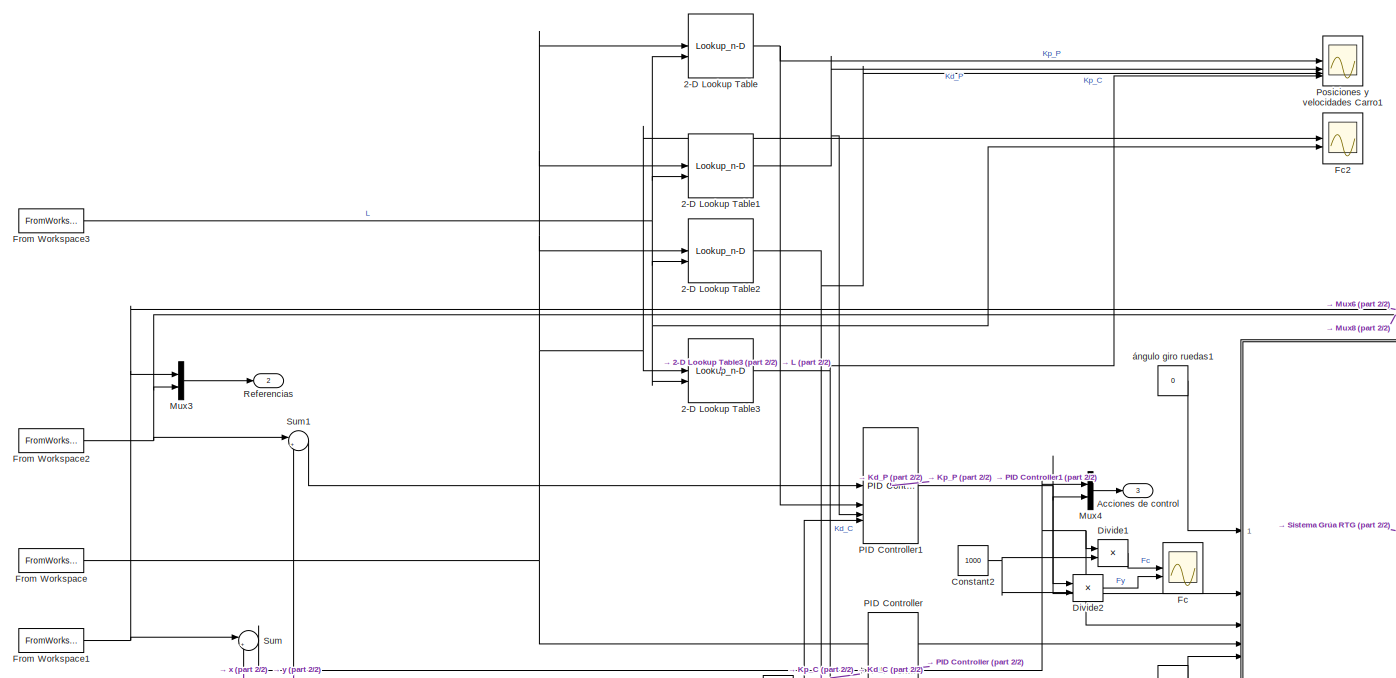
[diagram: root canvas - part 1/2, center side, full height]
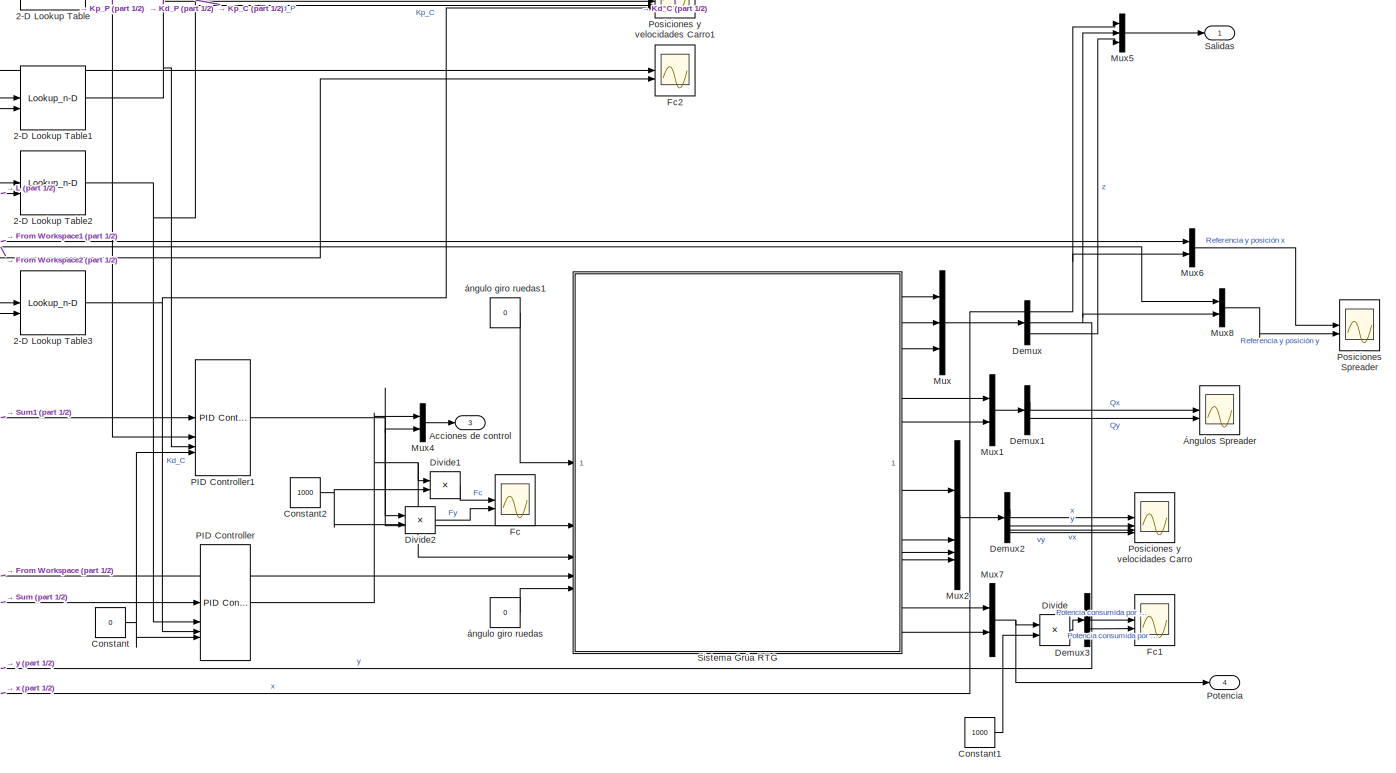
[diagram: root canvas - part 2/2, center side, full height]
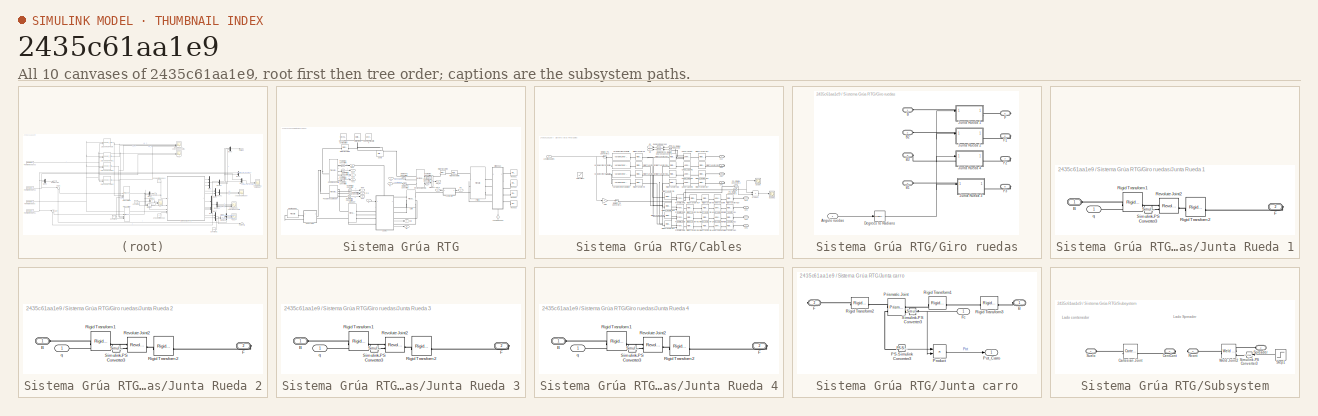
[diagram: thumbnail index - all 10 canvases of the model, root first then tree order]
MODEL slx_2435c61aa1e9
KIND model
CONFIG AbsTol = 1e-3
CONFIG EnableMultiTasking = on
CONFIG FixedStep = 0.05
CONFIG MaxStep = auto
CONFIG MinStep = auto
CONFIG RelTol = 1e-3
CONFIG SampleTimeConstraint = Unconstrained
CONFIG SolverName = ode15s
CONFIG StartTime = 0.0
CONFIG StopTime = 250
WORKSPACE source: mxarray member
WORKSPACE Zeq = 20.1304
BLOCK [Lookup_n-D] 2-D Lookup Table
  BreakpointsForDimension1 = L_vec
  BreakpointsForDimension1FirstPoint = 10
  BreakpointsForDimension1Spacing = 12
  BreakpointsForDimension2 = Mc_vec
  BreakpointsForDimension2FirstPoint = 10
  BreakpointsForDimension2Spacing = 12
  InputPortMap = u0,u1
  InternalRulePriority = Speed
  LookupTableObject = ''
  RndMeth = Simplest
  Table = Kp_P_mat
BLOCK [Lookup_n-D] 2-D Lookup Table1
  BreakpointsForDimension1 = L_vec
  BreakpointsForDimension1FirstPoint = 10
  BreakpointsForDimension1Spacing = 12
  BreakpointsForDimension2 = Mc_vec
  BreakpointsForDimension2FirstPoint = 10
  BreakpointsForDimension2Spacing = 12
  InputPortMap = u0,u1
  InternalRulePriority = Speed
  LookupTableObject = ''
  RndMeth = Simplest
  Table = Kd_P_mat
BLOCK [Lookup_n-D] 2-D Lookup Table2
  BreakpointsForDimension1 = L_vec
  BreakpointsForDimension1FirstPoint = 10
  BreakpointsForDimension1Spacing = 12
  BreakpointsForDimension2 = Mc_vec
  BreakpointsForDimension2FirstPoint = 10
  BreakpointsForDimension2Spacing = 12
  InputPortMap = u0,u1
  InternalRulePriority = Speed
  LookupTableObject = ''
  RndMeth = Simplest
  Table = Kp_C_mat
BLOCK [Lookup_n-D] 2-D Lookup Table3
  BreakpointsForDimension1 = L_vec
  BreakpointsForDimension1FirstPoint = 10
  BreakpointsForDimension1Spacing = 12
  BreakpointsForDimension2 = Mc_vec
  BreakpointsForDimension2FirstPoint = 10
  BreakpointsForDimension2Spacing = 12
  InputPortMap = u0,u1
  InternalRulePriority = Speed
  LookupTableObject = ''
  RndMeth = Simplest
  Table = Kd_C_mat
BLOCK [Outport] Acciones de control
  NameLocation = top
  Port = 3
BLOCK [Constant] Constant
  Value = 0
BLOCK [Constant] Constant1
  Value = 1000
BLOCK [Constant] Constant2
  Value = 1000
BLOCK [Demux] Demux
  Outputs = 3
BLOCK [Demux] Demux1
  Outputs = 2
BLOCK [Demux] Demux2
BLOCK [Demux] Demux3
  Outputs = 2
BLOCK [Product] Divide
  Inputs = */
BLOCK [Product] Divide1
  Inputs = */
BLOCK [Product] Divide2
  Inputs = */
BLOCK [Scope] Fc
  Floating = off
  NameLocation = right
  NumInputPorts = 2
  ScopeSpecificationString = Simulink.scopes.TimeScopeBlockCfg('CurrentConfiguration', extmgr.ConfigurationSet(extmgr.Configuration('Core','General UI',true,'FigureColor',[1 1 1]),extmgr.Configuration('Core','Source UI',true),extmgr.Configuration('Sources','WiredSimulink',true,'DataLoggingVariableName','ScopeData1'),extmgr.Configuration('Visuals','Time Domain',true,'SerializedDisplays',{struct('MinYLimReal','-33.43311','MaxYL...<+2516ch>
BLOCK [Scope] Fc1
  Floating = off
  NameLocation = right
  NumInputPorts = 2
  ScopeSpecificationString = Simulink.scopes.TimeScopeBlockCfg('CurrentConfiguration', extmgr.ConfigurationSet(extmgr.Configuration('Core','General UI',true,'FigureColor',[1 1 1]),extmgr.Configuration('Core','Source UI',true),extmgr.Configuration('Sources','WiredSimulink',true,'DataLoggingVariableName','ScopeData1'),extmgr.Configuration('Visuals','Time Domain',true,'SerializedDisplays',{struct('MinYLimReal','-4.72136','MaxYLi...<+2605ch>
BLOCK [Scope] Fc2
  Floating = off
  NameLocation = right
  NumInputPorts = 2
  ScopeSpecificationString = Simulink.scopes.TimeScopeBlockCfg('CurrentConfiguration', extmgr.ConfigurationSet(extmgr.Configuration('Core','General UI',true,'FigureColor',[1 1 1]),extmgr.Configuration('Core','Source UI',true),extmgr.Configuration('Sources','WiredSimulink',true,'DataLoggingVariableName','ScopeData2'),extmgr.Configuration('Visuals','Time Domain',true,'SerializedDisplays',{struct('MinYLimReal','2.76402','MaxYLim...<+2520ch>
BLOCK [FromWorkspace] From Workspace
  OutDataTypeStr = double
  VariableName = Lvec
BLOCK [FromWorkspace] From Workspace1
  OutDataTypeStr = double
  VariableName = RefXvec
BLOCK [FromWorkspace] From Workspace2
  OutDataTypeStr = double
  VariableName = RefYvec
BLOCK [FromWorkspace] From Workspace3
  VariableName = Mc_sim
BLOCK [Mux] Mux
  DisplayOption = bar
  Inputs = 3
BLOCK [Mux] Mux1
  DisplayOption = bar
  Inputs = 2
BLOCK [Mux] Mux2
  DisplayOption = bar
BLOCK [Mux] Mux3
  DisplayOption = bar
  Inputs = 2
BLOCK [Mux] Mux4
  DisplayOption = bar
  Inputs = 2
BLOCK [Mux] Mux5
  DisplayOption = bar
  Inputs = 3
BLOCK [Mux] Mux6
  DisplayOption = bar
  Inputs = 2
BLOCK [Mux] Mux7
  DisplayOption = bar
  Inputs = 2
BLOCK [Mux] Mux8
  DisplayOption = bar
  Inputs = 2
BLOCK [Reference] PID Controller  REF=slpidlib/PID Controller
  LibrarySourceBlock = simulink/Continuous/PID Controller
  SourceBlock = slpidlib/PID Controller
  SourceType = PID 1dof
BLOCK [Reference] PID Controller1  REF=slpidlib/PID Controller
  LibrarySourceBlock = simulink/Continuous/PID Controller
  SourceBlock = slpidlib/PID Controller
  SourceType = PID 1dof
BLOCK [Scope] Posiciones Spreader
  Floating = off
  NameLocation = right
  NumInputPorts = 2
  ScopeSpecificationString = Simulink.scopes.TimeScopeBlockCfg('CurrentConfiguration', extmgr.ConfigurationSet(extmgr.Configuration('Core','General UI',true,'FigureColor',[1 1 1]),extmgr.Configuration('Core','Source UI',true),extmgr.Configuration('Sources','WiredSimulink',true,'DataLoggingVariableName','ScopeData2'),extmgr.Configuration('Visuals','Time Domain',true,'SerializedDisplays',{struct('MinYLimReal','-1.8365','MaxYLim...<+2531ch>
BLOCK [Scope] Posiciones y velocidades Carro
  Floating = off
  NameLocation = right
  NumInputPorts = 4
  ScopeSpecificationString = Simulink.scopes.TimeScopeBlockCfg('CurrentConfiguration', extmgr.ConfigurationSet(extmgr.Configuration('Core','General UI',true,'FigureColor',[1 1 1]),extmgr.Configuration('Core','Source UI',true),extmgr.Configuration('Sources','WiredSimulink',true,'DataLoggingVariableName','ScopeData3'),extmgr.Configuration('Visuals','Time Domain',true,'SerializedDisplays',{struct('MinYLimReal','-1.88545','MaxYLi...<+4168ch>
BLOCK [Scope] Posiciones y velocidades Carro1
  Floating = off
  NameLocation = right
  NumInputPorts = 4
  ScopeSpecificationString = Simulink.scopes.TimeScopeBlockCfg('CurrentConfiguration', extmgr.ConfigurationSet(extmgr.Configuration('Core','General UI',true,'FigureColor',[1 1 1]),extmgr.Configuration('Core','Source UI',true),extmgr.Configuration('Sources','WiredSimulink',true,'DataLoggingVariableName','ScopeData1'),extmgr.Configuration('Visuals','Time Domain',true,'SerializedDisplays',{struct('MinYLimReal','4792.35357','MaxY...<+4229ch>
BLOCK [Outport] Potencia
  Port = 4
BLOCK [Outport] Referencias
  Port = 2
BLOCK [Outport] Salidas
  NameLocation = top
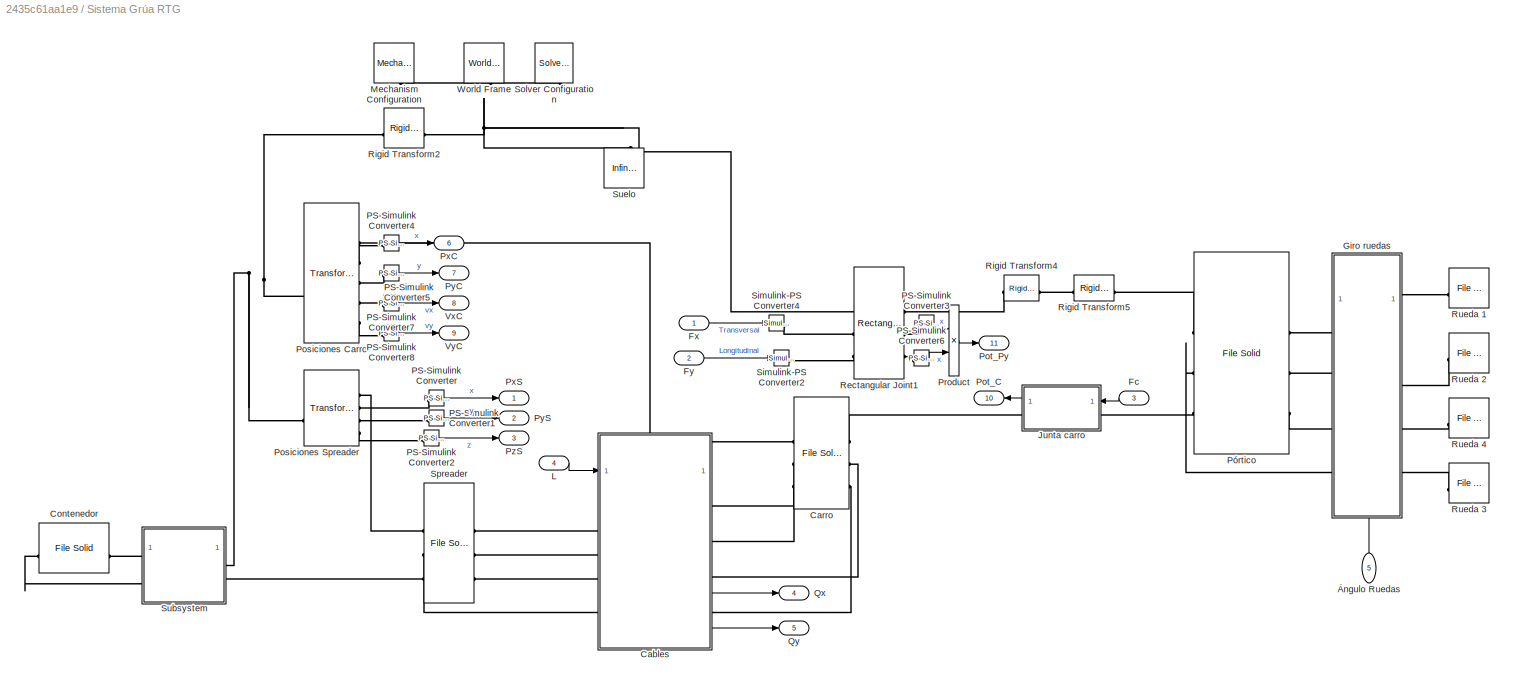
BLOCK [SubSystem] Sistema Grúa RTG
  NameLocation = top
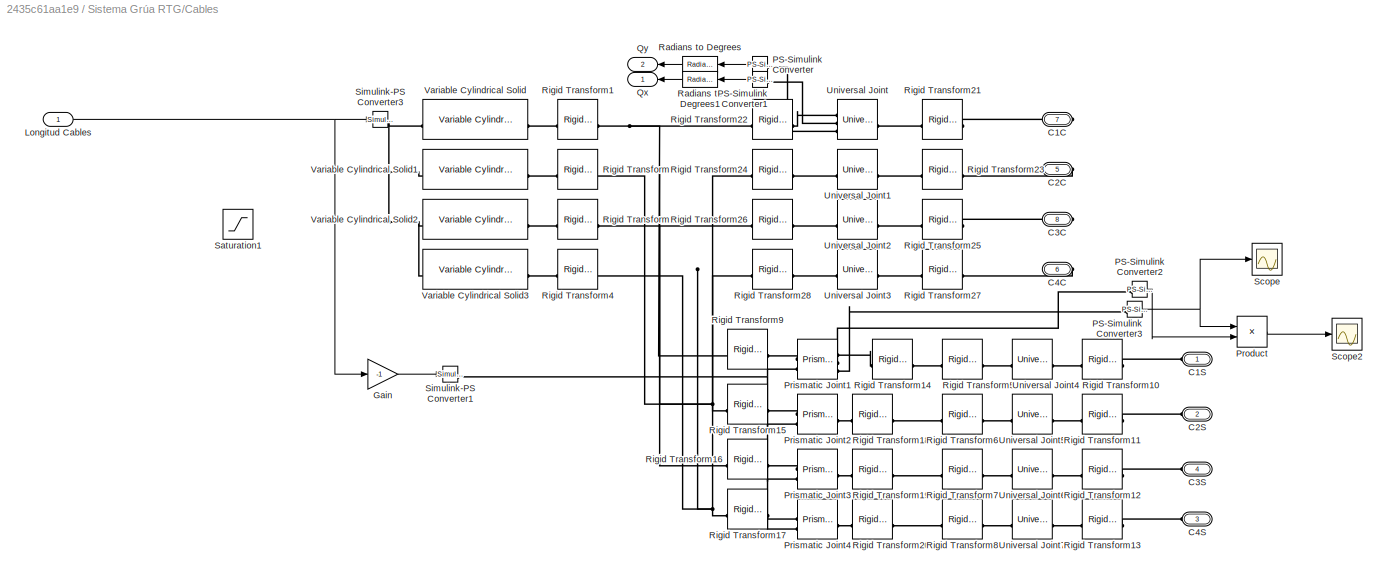
BLOCK [SubSystem] Sistema Grúa RTG/Cables
  PortSchema = {"entries":[{"content":{"sides":[{"content":{"connectorIds":["In1","LConn1","LConn2","LConn3","LConn4"]},"type":"ConnectorPlacement.EquallySpacedRectSide","uuid":"ec984c7e-e1d1-4181-a563-1208227983a4"},{"content":{"connectorIds":["RConn1","RConn2","RConn3","RConn4","Out1","Out2"],"side":"RIGHT"},"type":"ConnectorPlacement.EquallySpacedRectSide","uuid":"cac8f856-ea24-476a-83a0-5dfdb24fe635"},{"cont...<+319ch>
BLOCK [PMIOPort] Sistema Grúa RTG/Cables/C1C
  Port = 7
  Side = Right
BLOCK [PMIOPort] Sistema Grúa RTG/Cables/C1S
  Side = Left
BLOCK [PMIOPort] Sistema Grúa RTG/Cables/C2C
  Port = 5
  Side = Right
BLOCK [PMIOPort] Sistema Grúa RTG/Cables/C2S
  Port = 2
  Side = Left
BLOCK [PMIOPort] Sistema Grúa RTG/Cables/C3C
  Port = 8
  Side = Right
BLOCK [PMIOPort] Sistema Grúa RTG/Cables/C3S
  Port = 4
  Side = Left
BLOCK [PMIOPort] Sistema Grúa RTG/Cables/C4C
  Port = 6
  Side = Right
BLOCK [PMIOPort] Sistema Grúa RTG/Cables/C4S
  Port = 3
  Side = Left
BLOCK [Gain] Sistema Grúa RTG/Cables/Gain
  Gain = -1
BLOCK [Inport] Sistema Grúa RTG/Cables/Longitud Cables
BLOCK [Reference] Sistema Grúa RTG/Cables/PS-Simulink Converter  REF=nesl_utility/PS-Simulink
Converter
  NameLocation = top
  SourceBlock = nesl_utility/PS-Simulink\nConverter
  SourceType = PS-Simulink\nConverter
BLOCK [Reference] Sistema Grúa RTG/Cables/PS-Simulink Converter1  REF=nesl_utility/PS-Simulink
Converter
  NameLocation = top
  SourceBlock = nesl_utility/PS-Simulink\nConverter
  SourceType = PS-Simulink\nConverter
BLOCK [Reference] Sistema Grúa RTG/Cables/PS-Simulink Converter2  REF=nesl_utility/PS-Simulink
Converter
  SourceBlock = nesl_utility/PS-Simulink\nConverter
  SourceType = PS-Simulink\nConverter
BLOCK [Reference] Sistema Grúa RTG/Cables/PS-Simulink Converter3  REF=nesl_utility/PS-Simulink
Converter
  SourceBlock = nesl_utility/PS-Simulink\nConverter
  SourceType = PS-Simulink\nConverter
BLOCK [Reference] Sistema Grúa RTG/Cables/Prismatic Joint1  REF=sm_lib/Joints/Prismatic
Joint
  SourceBlock = sm_lib/Joints/Prismatic\nJoint
  SourceType = Prismatic\nJoint
BLOCK [Reference] Sistema Grúa RTG/Cables/Prismatic Joint2  REF=sm_lib/Joints/Prismatic
Joint
  SourceBlock = sm_lib/Joints/Prismatic\nJoint
  SourceType = Prismatic\nJoint
BLOCK [Reference] Sistema Grúa RTG/Cables/Prismatic Joint3  REF=sm_lib/Joints/Prismatic
Joint
  SourceBlock = sm_lib/Joints/Prismatic\nJoint
  SourceType = Prismatic\nJoint
BLOCK [Reference] Sistema Grúa RTG/Cables/Prismatic Joint4  REF=sm_lib/Joints/Prismatic
Joint
  SourceBlock = sm_lib/Joints/Prismatic\nJoint
  SourceType = Prismatic\nJoint
BLOCK [Product] Sistema Grúa RTG/Cables/Product
BLOCK [Outport] Sistema Grúa RTG/Cables/Qx
  NameLocation = left
BLOCK [Outport] Sistema Grúa RTG/Cables/Qy
  NameLocation = left
  Port = 2
BLOCK [Reference] Sistema Grúa RTG/Cables/Radians to Degrees  REF=simulink_extras/Transformations/Radians
to Degrees
  NameLocation = top
  SourceBlock = simulink_extras/Transformations/Radians\nto Degrees
  SourceType = RadiansToDegrees
BLOCK [Reference] Sistema Grúa RTG/Cables/Radians to Degrees1  REF=simulink_extras/Transformations/Radians
to Degrees
  NameLocation = top
  SourceBlock = simulink_extras/Transformations/Radians\nto Degrees
  SourceType = RadiansToDegrees
BLOCK [Reference] Sistema Grúa RTG/Cables/Rigid Transform1  REF=sm_lib/Frames and
Transforms/Rigid
Transform
  SourceBlock = sm_lib/Frames and\nTransforms/Rigid\nTransform
  SourceType = Rigid\nTransform
BLOCK [Reference] Sistema Grúa RTG/Cables/Rigid Transform10  REF=sm_lib/Frames and
Transforms/Rigid
Transform
  SourceBlock = sm_lib/Frames and\nTransforms/Rigid\nTransform
  SourceType = Rigid\nTransform
BLOCK [Reference] Sistema Grúa RTG/Cables/Rigid Transform11  REF=sm_lib/Frames and
Transforms/Rigid
Transform
  SourceBlock = sm_lib/Frames and\nTransforms/Rigid\nTransform
  SourceType = Rigid\nTransform
BLOCK [Reference] Sistema Grúa RTG/Cables/Rigid Transform12  REF=sm_lib/Frames and
Transforms/Rigid
Transform
  SourceBlock = sm_lib/Frames and\nTransforms/Rigid\nTransform
  SourceType = Rigid\nTransform
BLOCK [Reference] Sistema Grúa RTG/Cables/Rigid Transform13  REF=sm_lib/Frames and
Transforms/Rigid
Transform
  SourceBlock = sm_lib/Frames and\nTransforms/Rigid\nTransform
  SourceType = Rigid\nTransform
BLOCK [Reference] Sistema Grúa RTG/Cables/Rigid Transform14  REF=sm_lib/Frames and
Transforms/Rigid
Transform
  SourceBlock = sm_lib/Frames and\nTransforms/Rigid\nTransform
  SourceType = Rigid\nTransform
BLOCK [Reference] Sistema Grúa RTG/Cables/Rigid Transform15  REF=sm_lib/Frames and
Transforms/Rigid
Transform
  SourceBlock = sm_lib/Frames and\nTransforms/Rigid\nTransform
  SourceType = Rigid\nTransform
BLOCK [Reference] Sistema Grúa RTG/Cables/Rigid Transform16  REF=sm_lib/Frames and
Transforms/Rigid
Transform
  SourceBlock = sm_lib/Frames and\nTransforms/Rigid\nTransform
  SourceType = Rigid\nTransform
BLOCK [Reference] Sistema Grúa RTG/Cables/Rigid Transform17  REF=sm_lib/Frames and
Transforms/Rigid
Transform
  SourceBlock = sm_lib/Frames and\nTransforms/Rigid\nTransform
  SourceType = Rigid\nTransform
BLOCK [Reference] Sistema Grúa RTG/Cables/Rigid Transform18  REF=sm_lib/Frames and
Transforms/Rigid
Transform
  SourceBlock = sm_lib/Frames and\nTransforms/Rigid\nTransform
  SourceType = Rigid\nTransform
BLOCK [Reference] Sistema Grúa RTG/Cables/Rigid Transform19  REF=sm_lib/Frames and
Transforms/Rigid
Transform
  SourceBlock = sm_lib/Frames and\nTransforms/Rigid\nTransform
  SourceType = Rigid\nTransform
BLOCK [Reference] Sistema Grúa RTG/Cables/Rigid Transform2  REF=sm_lib/Frames and
Transforms/Rigid
Transform
  SourceBlock = sm_lib/Frames and\nTransforms/Rigid\nTransform
  SourceType = Rigid\nTransform
BLOCK [Reference] Sistema Grúa RTG/Cables/Rigid Transform20  REF=sm_lib/Frames and
Transforms/Rigid
Transform
  SourceBlock = sm_lib/Frames and\nTransforms/Rigid\nTransform
  SourceType = Rigid\nTransform
BLOCK [Reference] Sistema Grúa RTG/Cables/Rigid Transform21  REF=sm_lib/Frames and
Transforms/Rigid
Transform
  NameLocation = top
  SourceBlock = sm_lib/Frames and\nTransforms/Rigid\nTransform
  SourceType = Rigid\nTransform
BLOCK [Reference] Sistema Grúa RTG/Cables/Rigid Transform22  REF=sm_lib/Frames and
Transforms/Rigid
Transform
  NameLocation = top
  SourceBlock = sm_lib/Frames and\nTransforms/Rigid\nTransform
  SourceType = Rigid\nTransform
BLOCK [Reference] Sistema Grúa RTG/Cables/Rigid Transform23  REF=sm_lib/Frames and
Transforms/Rigid
Transform
  NameLocation = top
  SourceBlock = sm_lib/Frames and\nTransforms/Rigid\nTransform
  SourceType = Rigid\nTransform
BLOCK [Reference] Sistema Grúa RTG/Cables/Rigid Transform24  REF=sm_lib/Frames and
Transforms/Rigid
Transform
  NameLocation = top
  SourceBlock = sm_lib/Frames and\nTransforms/Rigid\nTransform
  SourceType = Rigid\nTransform
BLOCK [Reference] Sistema Grúa RTG/Cables/Rigid Transform25  REF=sm_lib/Frames and
Transforms/Rigid
Transform
  NameLocation = left
  SourceBlock = sm_lib/Frames and\nTransforms/Rigid\nTransform
  SourceType = Rigid\nTransform
BLOCK [Reference] Sistema Grúa RTG/Cables/Rigid Transform26  REF=sm_lib/Frames and
Transforms/Rigid
Transform
  NameLocation = top
  SourceBlock = sm_lib/Frames and\nTransforms/Rigid\nTransform
  SourceType = Rigid\nTransform
BLOCK [Reference] Sistema Grúa RTG/Cables/Rigid Transform27  REF=sm_lib/Frames and
Transforms/Rigid
Transform
  NameLocation = top
  SourceBlock = sm_lib/Frames and\nTransforms/Rigid\nTransform
  SourceType = Rigid\nTransform
BLOCK [Reference] Sistema Grúa RTG/Cables/Rigid Transform28  REF=sm_lib/Frames and
Transforms/Rigid
Transform
  NameLocation = top
  SourceBlock = sm_lib/Frames and\nTransforms/Rigid\nTransform
  SourceType = Rigid\nTransform
BLOCK [Reference] Sistema Grúa RTG/Cables/Rigid Transform3  REF=sm_lib/Frames and
Transforms/Rigid
Transform
  SourceBlock = sm_lib/Frames and\nTransforms/Rigid\nTransform
  SourceType = Rigid\nTransform
BLOCK [Reference] Sistema Grúa RTG/Cables/Rigid Transform4  REF=sm_lib/Frames and
Transforms/Rigid
Transform
  SourceBlock = sm_lib/Frames and\nTransforms/Rigid\nTransform
  SourceType = Rigid\nTransform
BLOCK [Reference] Sistema Grúa RTG/Cables/Rigid Transform5  REF=sm_lib/Frames and
Transforms/Rigid
Transform
  SourceBlock = sm_lib/Frames and\nTransforms/Rigid\nTransform
  SourceType = Rigid\nTransform
BLOCK [Reference] Sistema Grúa RTG/Cables/Rigid Transform6  REF=sm_lib/Frames and
Transforms/Rigid
Transform
  SourceBlock = sm_lib/Frames and\nTransforms/Rigid\nTransform
  SourceType = Rigid\nTransform
BLOCK [Reference] Sistema Grúa RTG/Cables/Rigid Transform7  REF=sm_lib/Frames and
Transforms/Rigid
Transform
  SourceBlock = sm_lib/Frames and\nTransforms/Rigid\nTransform
  SourceType = Rigid\nTransform
BLOCK [Reference] Sistema Grúa RTG/Cables/Rigid Transform8  REF=sm_lib/Frames and
Transforms/Rigid
Transform
  SourceBlock = sm_lib/Frames and\nTransforms/Rigid\nTransform
  SourceType = Rigid\nTransform
BLOCK [Reference] Sistema Grúa RTG/Cables/Rigid Transform9  REF=sm_lib/Frames and
Transforms/Rigid
Transform
  SourceBlock = sm_lib/Frames and\nTransforms/Rigid\nTransform
  SourceType = Rigid\nTransform
BLOCK [Saturate] Sistema Grúa RTG/Cables/Saturation1
  Commented = on
  LowerLimit = min(Lsub,Lfin)
  UpperLimit = max(Lsub,Lfin)
BLOCK [Scope] Sistema Grúa RTG/Cables/Scope
  Floating = off
  NumInputPorts = 1
  ScopeSpecificationString = Simulink.scopes.TimeScopeBlockCfg('CurrentConfiguration', extmgr.ConfigurationSet(extmgr.Configuration('Core','General UI',true),extmgr.Configuration('Core','Source UI',true),extmgr.Configuration('Sources','WiredSimulink',true,'DataLoggingVariableName','ScopeData1'),extmgr.Configuration('Visuals','Time Domain',true,'SerializedDisplays',{struct('MinYLimReal','-130773.79381','MaxYLimReal','337410.56...<+1573ch>
BLOCK [Scope] Sistema Grúa RTG/Cables/Scope2
  Floating = off
  NumInputPorts = 1
  ScopeSpecificationString = Simulink.scopes.TimeScopeBlockCfg('CurrentConfiguration', extmgr.ConfigurationSet(extmgr.Configuration('Core','General UI',true),extmgr.Configuration('Core','Source UI',true),extmgr.Configuration('Sources','WiredSimulink',true,'DataLoggingVariableName','ScopeData3'),extmgr.Configuration('Visuals','Time Domain',true,'SerializedDisplays',{struct('MinYLimReal','-4462.10835','MaxYLimReal','8875.6175',...<+1403ch>
BLOCK [Reference] Sistema Grúa RTG/Cables/Simulink-PS Converter1  REF=nesl_utility/Simulink-PS
Converter
  SourceBlock = nesl_utility/Simulink-PS\nConverter
  SourceType = Simulink-PS\nConverter
BLOCK [Reference] Sistema Grúa RTG/Cables/Simulink-PS Converter3  REF=nesl_utility/Simulink-PS
Converter
  SourceBlock = nesl_utility/Simulink-PS\nConverter
  SourceType = Simulink-PS\nConverter
BLOCK [Reference] Sistema Grúa RTG/Cables/Universal Joint  REF=sm_lib/Joints/Universal
Joint
  NameLocation = top
  SourceBlock = sm_lib/Joints/Universal\nJoint
  SourceType = Universal\nJoint
BLOCK [Reference] Sistema Grúa RTG/Cables/Universal Joint1  REF=sm_lib/Joints/Universal
Joint
  NameLocation = top
  SourceBlock = sm_lib/Joints/Universal\nJoint
  SourceType = Universal\nJoint
BLOCK [Reference] Sistema Grúa RTG/Cables/Universal Joint2  REF=sm_lib/Joints/Universal
Joint
  NameLocation = top
  SourceBlock = sm_lib/Joints/Universal\nJoint
  SourceType = Universal\nJoint
BLOCK [Reference] Sistema Grúa RTG/Cables/Universal Joint3  REF=sm_lib/Joints/Universal
Joint
  NameLocation = top
  SourceBlock = sm_lib/Joints/Universal\nJoint
  SourceType = Universal\nJoint
BLOCK [Reference] Sistema Grúa RTG/Cables/Universal Joint4  REF=sm_lib/Joints/Universal
Joint
  NameLocation = top
  SourceBlock = sm_lib/Joints/Universal\nJoint
  SourceType = Universal\nJoint
BLOCK [Reference] Sistema Grúa RTG/Cables/Universal Joint5  REF=sm_lib/Joints/Universal
Joint
  NameLocation = top
  SourceBlock = sm_lib/Joints/Universal\nJoint
  SourceType = Universal\nJoint
BLOCK [Reference] Sistema Grúa RTG/Cables/Universal Joint6  REF=sm_lib/Joints/Universal
Joint
  NameLocation = top
  SourceBlock = sm_lib/Joints/Universal\nJoint
  SourceType = Universal\nJoint
BLOCK [Reference] Sistema Grúa RTG/Cables/Universal Joint7  REF=sm_lib/Joints/Universal
Joint
  SourceBlock = sm_lib/Joints/Universal\nJoint
  SourceType = Universal\nJoint
BLOCK [Reference] Sistema Grúa RTG/Cables/Variable Cylindrical Solid  REF=sm_lib/Body Elements/Variable Mass/Variable
Cylindrical Solid
  SourceBlock = sm_lib/Body Elements/Variable Mass/Variable\nCylindrical Solid
  SourceType = Variable\nCylindrical Solid
BLOCK [Reference] Sistema Grúa RTG/Cables/Variable Cylindrical Solid1  REF=sm_lib/Body Elements/Variable Mass/Variable
Cylindrical Solid
  SourceBlock = sm_lib/Body Elements/Variable Mass/Variable\nCylindrical Solid
  SourceType = Variable\nCylindrical Solid
BLOCK [Reference] Sistema Grúa RTG/Cables/Variable Cylindrical Solid2  REF=sm_lib/Body Elements/Variable Mass/Variable
Cylindrical Solid
  SourceBlock = sm_lib/Body Elements/Variable Mass/Variable\nCylindrical Solid
  SourceType = Variable\nCylindrical Solid
BLOCK [Reference] Sistema Grúa RTG/Cables/Variable Cylindrical Solid3  REF=sm_lib/Body Elements/Variable Mass/Variable
Cylindrical Solid
  SourceBlock = sm_lib/Body Elements/Variable Mass/Variable\nCylindrical Solid
  SourceType = Variable\nCylindrical Solid
BLOCK [Reference] Sistema Grúa RTG/Carro  REF=sm_lib/Body Elements/File Solid
  NameLocation = top
  SourceBlock = sm_lib/Body Elements/File Solid
  SourceType = File Solid
BLOCK [Reference] Sistema Grúa RTG/Contenedor  REF=sm_lib/Body Elements/File Solid
  NameLocation = top
  SourceBlock = sm_lib/Body Elements/File Solid
  SourceType = File Solid
BLOCK [Inport] Sistema Grúa RTG/Fc
  NameLocation = top
  Port = 3
BLOCK [Inport] Sistema Grúa RTG/Fx
BLOCK [Inport] Sistema Grúa RTG/Fy
  Port = 2
BLOCK [SubSystem] Sistema Grúa RTG/Giro ruedas
  NameLocation = top
  PortSchema = {"entries":[{"content":{"sides":[{"content":{"connectorIds":["LConn1","LConn2","LConn3","LConn4"]},"type":"ConnectorPlacement.EquallySpacedRectSide","uuid":"ecfda100-e739-4f1c-94c0-80bec1584046"},{"content":{"connectorIds":["RConn1","RConn2","RConn3","RConn4"],"side":"RIGHT"},"type":"ConnectorPlacement.EquallySpacedRectSide","uuid":"5c64e617-bec3-4d66-a823-06a5171e74eb"},{"content":{"connectorIds"...<+448ch>
BLOCK [PMIOPort] Sistema Grúa RTG/Giro ruedas/B
  Side = Left
BLOCK [PMIOPort] Sistema Grúa RTG/Giro ruedas/B1
  NameLocation = top
  Port = 4
  Side = Left
BLOCK [PMIOPort] Sistema Grúa RTG/Giro ruedas/B2
  Port = 2
  Side = Left
BLOCK [PMIOPort] Sistema Grúa RTG/Giro ruedas/B3
  Port = 3
  Side = Left
BLOCK [Reference] Sistema Grúa RTG/Giro ruedas/Degrees to Radians  REF=simulink_extras/Transformations/Degrees to
Radians
  SourceBlock = simulink_extras/Transformations/Degrees to\nRadians
  SourceType = DegreesToRadians
BLOCK [PMIOPort] Sistema Grúa RTG/Giro ruedas/F
  Port = 5
  Side = Right
BLOCK [PMIOPort] Sistema Grúa RTG/Giro ruedas/F1
  Port = 6
  Side = Right
BLOCK [PMIOPort] Sistema Grúa RTG/Giro ruedas/F2
  Port = 7
  Side = Right
BLOCK [PMIOPort] Sistema Grúa RTG/Giro ruedas/F3
  Port = 8
  Side = Right
BLOCK [SubSystem] Sistema Grúa RTG/Giro ruedas/Junta Rueda 1
  PortSchema = {"entries":[{"content":{"sides":[{"content":{"connectorIds":["LConn1","In1"]},"type":"ConnectorPlacement.EquallySpacedRectSide","uuid":"f0e46341-b390-4c6c-beb3-e4f900ccbffb"},{"content":{"connectorIds":["RConn1"],"side":"RIGHT"},"type":"ConnectorPlacement.EquallySpacedRectSide","uuid":"2d256e19-6c3b-4e7c-aef3-5839dee41e50"},{"content":{"connectorIds":[],"side":"TOP"},"type":"ConnectorPlacement.Equ...<+251ch>  <repeated x4 — deduplicated; at blocks: Junta Rueda 1, Junta Rueda 2, Junta Rueda 3, Junta Rueda 4>
BLOCK [PMIOPort] Sistema Grúa RTG/Giro ruedas/Junta Rueda 1/B
  Side = Left
BLOCK [PMIOPort] Sistema Grúa RTG/Giro ruedas/Junta Rueda 1/F
  Port = 2
  Side = Right
BLOCK [Reference] Sistema Grúa RTG/Giro ruedas/Junta Rueda 1/Revolute Joint2  REF=sm_lib/Joints/Revolute Joint
  SourceBlock = sm_lib/Joints/Revolute Joint
  SourceType = Revolute Joint
BLOCK [Reference] Sistema Grúa RTG/Giro ruedas/Junta Rueda 1/Rigid Transform1  REF=sm_lib/Frames and
Transforms/Rigid
Transform
  SourceBlock = sm_lib/Frames and\nTransforms/Rigid\nTransform
  SourceType = Rigid\nTransform
BLOCK [Reference] Sistema Grúa RTG/Giro ruedas/Junta Rueda 1/Rigid Transform2  REF=sm_lib/Frames and
Transforms/Rigid
Transform
  SourceBlock = sm_lib/Frames and\nTransforms/Rigid\nTransform
  SourceType = Rigid\nTransform
BLOCK [Reference] Sistema Grúa RTG/Giro ruedas/Junta Rueda 1/Simulink-PS Converter3  REF=nesl_utility/Simulink-PS
Converter
  SourceBlock = nesl_utility/Simulink-PS\nConverter
  SourceType = Simulink-PS\nConverter
BLOCK [Inport] Sistema Grúa RTG/Giro ruedas/Junta Rueda 1/q
BLOCK [SubSystem] Sistema Grúa RTG/Giro ruedas/Junta Rueda 2
BLOCK [PMIOPort] Sistema Grúa RTG/Giro ruedas/Junta Rueda 2/B
  Side = Left
BLOCK [PMIOPort] Sistema Grúa RTG/Giro ruedas/Junta Rueda 2/F
  Port = 2
  Side = Right
BLOCK [Reference] Sistema Grúa RTG/Giro ruedas/Junta Rueda 2/Revolute Joint2  REF=sm_lib/Joints/Revolute Joint
  SourceBlock = sm_lib/Joints/Revolute Joint
  SourceType = Revolute Joint
BLOCK [Reference] Sistema Grúa RTG/Giro ruedas/Junta Rueda 2/Rigid Transform1  REF=sm_lib/Frames and
Transforms/Rigid
Transform
  SourceBlock = sm_lib/Frames and\nTransforms/Rigid\nTransform
  SourceType = Rigid\nTransform
BLOCK [Reference] Sistema Grúa RTG/Giro ruedas/Junta Rueda 2/Rigid Transform2  REF=sm_lib/Frames and
Transforms/Rigid
Transform
  SourceBlock = sm_lib/Frames and\nTransforms/Rigid\nTransform
  SourceType = Rigid\nTransform
BLOCK [Reference] Sistema Grúa RTG/Giro ruedas/Junta Rueda 2/Simulink-PS Converter3  REF=nesl_utility/Simulink-PS
Converter
  SourceBlock = nesl_utility/Simulink-PS\nConverter
  SourceType = Simulink-PS\nConverter
BLOCK [Inport] Sistema Grúa RTG/Giro ruedas/Junta Rueda 2/q
BLOCK [SubSystem] Sistema Grúa RTG/Giro ruedas/Junta Rueda 3
BLOCK [PMIOPort] Sistema Grúa RTG/Giro ruedas/Junta Rueda 3/B
  Side = Left
BLOCK [PMIOPort] Sistema Grúa RTG/Giro ruedas/Junta Rueda 3/F
  Port = 2
  Side = Right
BLOCK [Reference] Sistema Grúa RTG/Giro ruedas/Junta Rueda 3/Revolute Joint2  REF=sm_lib/Joints/Revolute Joint
  SourceBlock = sm_lib/Joints/Revolute Joint
  SourceType = Revolute Joint
BLOCK [Reference] Sistema Grúa RTG/Giro ruedas/Junta Rueda 3/Rigid Transform1  REF=sm_lib/Frames and
Transforms/Rigid
Transform
  SourceBlock = sm_lib/Frames and\nTransforms/Rigid\nTransform
  SourceType = Rigid\nTransform
BLOCK [Reference] Sistema Grúa RTG/Giro ruedas/Junta Rueda 3/Rigid Transform2  REF=sm_lib/Frames and
Transforms/Rigid
Transform
  SourceBlock = sm_lib/Frames and\nTransforms/Rigid\nTransform
  SourceType = Rigid\nTransform
BLOCK [Reference] Sistema Grúa RTG/Giro ruedas/Junta Rueda 3/Simulink-PS Converter3  REF=nesl_utility/Simulink-PS
Converter
  SourceBlock = nesl_utility/Simulink-PS\nConverter
  SourceType = Simulink-PS\nConverter
BLOCK [Inport] Sistema Grúa RTG/Giro ruedas/Junta Rueda 3/q
BLOCK [SubSystem] Sistema Grúa RTG/Giro ruedas/Junta Rueda 4
BLOCK [PMIOPort] Sistema Grúa RTG/Giro ruedas/Junta Rueda 4/B
  Side = Left
BLOCK [PMIOPort] Sistema Grúa RTG/Giro ruedas/Junta Rueda 4/F
  Port = 2
  Side = Right
BLOCK [Reference] Sistema Grúa RTG/Giro ruedas/Junta Rueda 4/Revolute Joint2  REF=sm_lib/Joints/Revolute Joint
  SourceBlock = sm_lib/Joints/Revolute Joint
  SourceType = Revolute Joint
BLOCK [Reference] Sistema Grúa RTG/Giro ruedas/Junta Rueda 4/Rigid Transform1  REF=sm_lib/Frames and
Transforms/Rigid
Transform
  SourceBlock = sm_lib/Frames and\nTransforms/Rigid\nTransform
  SourceType = Rigid\nTransform
BLOCK [Reference] Sistema Grúa RTG/Giro ruedas/Junta Rueda 4/Rigid Transform2  REF=sm_lib/Frames and
Transforms/Rigid
Transform
  SourceBlock = sm_lib/Frames and\nTransforms/Rigid\nTransform
  SourceType = Rigid\nTransform
BLOCK [Reference] Sistema Grúa RTG/Giro ruedas/Junta Rueda 4/Simulink-PS Converter3  REF=nesl_utility/Simulink-PS
Converter
  SourceBlock = nesl_utility/Simulink-PS\nConverter
  SourceType = Simulink-PS\nConverter
BLOCK [Inport] Sistema Grúa RTG/Giro ruedas/Junta Rueda 4/q
BLOCK [Inport] Sistema Grúa RTG/Giro ruedas/Ángulo ruedas
BLOCK [SubSystem] Sistema Grúa RTG/Junta carro
  NameLocation = top
BLOCK [PMIOPort] Sistema Grúa RTG/Junta carro/B
  Side = Left
BLOCK [PMIOPort] Sistema Grúa RTG/Junta carro/F
  Port = 2
  Side = Right
BLOCK [Inport] Sistema Grúa RTG/Junta carro/Fc
BLOCK [Reference] Sistema Grúa RTG/Junta carro/PS-Simulink Converter3  REF=nesl_utility/PS-Simulink
Converter
  SourceBlock = nesl_utility/PS-Simulink\nConverter
  SourceType = PS-Simulink\nConverter
BLOCK [Outport] Sistema Grúa RTG/Junta carro/Pot_Carro
BLOCK [Reference] Sistema Grúa RTG/Junta carro/Prismatic Joint  REF=sm_lib/Joints/Prismatic
Joint
  NameLocation = top
  SourceBlock = sm_lib/Joints/Prismatic\nJoint
  SourceType = Prismatic\nJoint
BLOCK [Product] Sistema Grúa RTG/Junta carro/Product
BLOCK [Reference] Sistema Grúa RTG/Junta carro/Rigid Transform1  REF=sm_lib/Frames and
Transforms/Rigid
Transform
  NameLocation = top
  SourceBlock = sm_lib/Frames and\nTransforms/Rigid\nTransform
  SourceType = Rigid\nTransform
BLOCK [Reference] Sistema Grúa RTG/Junta carro/Rigid Transform2  REF=sm_lib/Frames and
Transforms/Rigid
Transform
  NameLocation = top
  SourceBlock = sm_lib/Frames and\nTransforms/Rigid\nTransform
  SourceType = Rigid\nTransform
BLOCK [Reference] Sistema Grúa RTG/Junta carro/Rigid Transform3  REF=sm_lib/Frames and
Transforms/Rigid
Transform
  NameLocation = top
  SourceBlock = sm_lib/Frames and\nTransforms/Rigid\nTransform
  SourceType = Rigid\nTransform
BLOCK [Reference] Sistema Grúa RTG/Junta carro/Simulink-PS Converter3  REF=nesl_utility/Simulink-PS
Converter
  NameLocation = top
  SourceBlock = nesl_utility/Simulink-PS\nConverter
  SourceType = Simulink-PS\nConverter
BLOCK [Inport] Sistema Grúa RTG/L
  Port = 4
BLOCK [Reference] Sistema Grúa RTG/Mechanism Configuration  REF=sm_lib/Utilities/Mechanism
Configuration
  NameLocation = left
  SourceBlock = sm_lib/Utilities/Mechanism\nConfiguration
  SourceType = Mechanism\nConfiguration
BLOCK [Reference] Sistema Grúa RTG/PS-Simulink Converter  REF=nesl_utility/PS-Simulink
Converter
  SourceBlock = nesl_utility/PS-Simulink\nConverter
  SourceType = PS-Simulink\nConverter
BLOCK [Reference] Sistema Grúa RTG/PS-Simulink Converter1  REF=nesl_utility/PS-Simulink
Converter
  SourceBlock = nesl_utility/PS-Simulink\nConverter
  SourceType = PS-Simulink\nConverter
BLOCK [Reference] Sistema Grúa RTG/PS-Simulink Converter2  REF=nesl_utility/PS-Simulink
Converter
  SourceBlock = nesl_utility/PS-Simulink\nConverter
  SourceType = PS-Simulink\nConverter
BLOCK [Reference] Sistema Grúa RTG/PS-Simulink Converter3  REF=nesl_utility/PS-Simulink
Converter
  SourceBlock = nesl_utility/PS-Simulink\nConverter
  SourceType = PS-Simulink\nConverter
BLOCK [Reference] Sistema Grúa RTG/PS-Simulink Converter4  REF=nesl_utility/PS-Simulink
Converter
  SourceBlock = nesl_utility/PS-Simulink\nConverter
  SourceType = PS-Simulink\nConverter
BLOCK [Reference] Sistema Grúa RTG/PS-Simulink Converter5  REF=nesl_utility/PS-Simulink
Converter
  SourceBlock = nesl_utility/PS-Simulink\nConverter
  SourceType = PS-Simulink\nConverter
BLOCK [Reference] Sistema Grúa RTG/PS-Simulink Converter6  REF=nesl_utility/PS-Simulink
Converter
  SourceBlock = nesl_utility/PS-Simulink\nConverter
  SourceType = PS-Simulink\nConverter
BLOCK [Reference] Sistema Grúa RTG/PS-Simulink Converter7  REF=nesl_utility/PS-Simulink
Converter
  SourceBlock = nesl_utility/PS-Simulink\nConverter
  SourceType = PS-Simulink\nConverter
BLOCK [Reference] Sistema Grúa RTG/PS-Simulink Converter8  REF=nesl_utility/PS-Simulink
Converter
  SourceBlock = nesl_utility/PS-Simulink\nConverter
  SourceType = PS-Simulink\nConverter
BLOCK [Reference] Sistema Grúa RTG/Posiciones Carro  REF=sm_lib/Frames and
Transforms/Transform
Sensor
  NameLocation = top
  SourceBlock = sm_lib/Frames and\nTransforms/Transform\nSensor
  SourceType = Transform\nSensor
BLOCK [Reference] Sistema Grúa RTG/Posiciones Spreader  REF=sm_lib/Frames and
Transforms/Transform
Sensor
  NameLocation = top
  SourceBlock = sm_lib/Frames and\nTransforms/Transform\nSensor
  SourceType = Transform\nSensor
BLOCK [Outport] Sistema Grúa RTG/Pot_C
  NameLocation = top
  Port = 10
BLOCK [Outport] Sistema Grúa RTG/Pot_Py
  Port = 11
BLOCK [Product] Sistema Grúa RTG/Product
BLOCK [Outport] Sistema Grúa RTG/PxC
  NameLocation = right
  Port = 6
BLOCK [Outport] Sistema Grúa RTG/PxS
  NameLocation = right
BLOCK [Outport] Sistema Grúa RTG/PyC
  NameLocation = right
  Port = 7
BLOCK [Outport] Sistema Grúa RTG/PyS
  NameLocation = right
  Port = 2
BLOCK [Outport] Sistema Grúa RTG/PzS
  NameLocation = right
  Port = 3
BLOCK [Reference] Sistema Grúa RTG/Pórtico  REF=sm_lib/Body Elements/File Solid
  NameLocation = top
  SourceBlock = sm_lib/Body Elements/File Solid
  SourceType = File Solid
BLOCK [Outport] Sistema Grúa RTG/Qx
  Port = 4
BLOCK [Outport] Sistema Grúa RTG/Qy
  Port = 5
BLOCK [Reference] Sistema Grúa RTG/Rectangular Joint1  REF=sm_lib/Joints/Rectangular
Joint
  NameLocation = top
  SourceBlock = sm_lib/Joints/Rectangular\nJoint
  SourceType = Rectangular\nJoint
BLOCK [Reference] Sistema Grúa RTG/Rigid Transform2  REF=sm_lib/Frames and
Transforms/Rigid
Transform
  SourceBlock = sm_lib/Frames and\nTransforms/Rigid\nTransform
  SourceType = Rigid\nTransform
BLOCK [Reference] Sistema Grúa RTG/Rigid Transform4  REF=sm_lib/Frames and
Transforms/Rigid
Transform
  NameLocation = top
  SourceBlock = sm_lib/Frames and\nTransforms/Rigid\nTransform
  SourceType = Rigid\nTransform
BLOCK [Reference] Sistema Grúa RTG/Rigid Transform5  REF=sm_lib/Frames and
Transforms/Rigid
Transform
  NameLocation = top
  SourceBlock = sm_lib/Frames and\nTransforms/Rigid\nTransform
  SourceType = Rigid\nTransform
BLOCK [Reference] Sistema Grúa RTG/Rueda 1  REF=sm_lib/Body Elements/File Solid
  NameLocation = top
  SourceBlock = sm_lib/Body Elements/File Solid
  SourceType = File Solid
BLOCK [Reference] Sistema Grúa RTG/Rueda 2  REF=sm_lib/Body Elements/File Solid
  NameLocation = top
  SourceBlock = sm_lib/Body Elements/File Solid
  SourceType = File Solid
BLOCK [Reference] Sistema Grúa RTG/Rueda 3  REF=sm_lib/Body Elements/File Solid
  SourceBlock = sm_lib/Body Elements/File Solid
  SourceType = File Solid
BLOCK [Reference] Sistema Grúa RTG/Rueda 4  REF=sm_lib/Body Elements/File Solid
  NameLocation = top
  SourceBlock = sm_lib/Body Elements/File Solid
  SourceType = File Solid
BLOCK [Reference] Sistema Grúa RTG/Simulink-PS Converter2  REF=nesl_utility/Simulink-PS
Converter
  SourceBlock = nesl_utility/Simulink-PS\nConverter
  SourceType = Simulink-PS\nConverter
BLOCK [Reference] Sistema Grúa RTG/Simulink-PS Converter4  REF=nesl_utility/Simulink-PS
Converter
  SourceBlock = nesl_utility/Simulink-PS\nConverter
  SourceType = Simulink-PS\nConverter
BLOCK [Reference] Sistema Grúa RTG/Solver Configuration  REF=nesl_utility/Solver
Configuration
  NameLocation = left
  SourceBlock = nesl_utility/Solver\nConfiguration
  SourceType = Solver\nConfiguration
BLOCK [Reference] Sistema Grúa RTG/Spreader  REF=sm_lib/Body Elements/File Solid
  NameLocation = top
  SourceBlock = sm_lib/Body Elements/File Solid
  SourceType = File Solid
BLOCK [SubSystem] Sistema Grúa RTG/Subsystem
BLOCK [Reference] Sistema Grúa RTG/Subsystem/Cartesian Joint  REF=sm_lib/Joints/Cartesian
Joint
  SourceBlock = sm_lib/Joints/Cartesian\nJoint
  SourceType = Cartesian\nJoint
BLOCK [PMIOPort] Sistema Grúa RTG/Subsystem/CentCont
  Port = 4
  Side = Right
BLOCK [PMIOPort] Sistema Grúa RTG/Subsystem/Rcont
  Port = 3
  Side = Right
BLOCK [Reference] Sistema Grúa RTG/Subsystem/Simulink-PS Converter3  REF=nesl_utility/Simulink-PS
Converter
  NameLocation = top
  SourceBlock = nesl_utility/Simulink-PS\nConverter
  SourceType = Simulink-PS\nConverter
BLOCK [PMIOPort] Sistema Grúa RTG/Subsystem/Spreader
  Port = 2
  Side = Left
BLOCK [Step] Sistema Grúa RTG/Subsystem/Step1
  After = -1
  NameLocation = top
  SampleTime = 0
  Time = Tdesenganche
BLOCK [PMIOPort] Sistema Grúa RTG/Subsystem/Suelo
  NameLocation = top
  Side = Left
BLOCK [Reference] Sistema Grúa RTG/Subsystem/Weld Joint2  REF=sm_lib/Joints/Weld Joint
  SourceBlock = sm_lib/Joints/Weld Joint
  SourceType = Weld Joint
BLOCK [Reference] Sistema Grúa RTG/Suelo  REF=sm_lib/Curves and Surfaces/Infinite Plane
  NameLocation = left
  SourceBlock = sm_lib/Curves and Surfaces/Infinite Plane
  SourceType = Infinite Plane
BLOCK [Outport] Sistema Grúa RTG/VxC
  NameLocation = right
  Port = 8
BLOCK [Outport] Sistema Grúa RTG/VyC
  NameLocation = right
  Port = 9
BLOCK [Reference] Sistema Grúa RTG/World Frame  REF=sm_lib/Frames and
Transforms/World Frame
  NameLocation = left
  SourceBlock = sm_lib/Frames and\nTransforms/World Frame
  SourceType = World Frame
BLOCK [Inport] Sistema Grúa RTG/Ángulo Ruedas
  NameLocation = right
  Port = 5
BLOCK [Sum] Sum
  Inputs = |+-
BLOCK [Sum] Sum1
  Inputs = |+-
BLOCK [Scope] Ángulos Spreader
  Floating = off
  NameLocation = right
  NumInputPorts = 2
  ScopeSpecificationString = Simulink.scopes.TimeScopeBlockCfg('CurrentConfiguration', extmgr.ConfigurationSet(extmgr.Configuration('Core','General UI',true,'FigureColor',[1 1 1]),extmgr.Configuration('Core','Source UI',true),extmgr.Configuration('Sources','WiredSimulink',true,'DataLoggingVariableName','ScopeData1'),extmgr.Configuration('Visuals','Time Domain',true,'SerializedDisplays',{struct('MinYLimReal','-3.24983','MaxYLi...<+2366ch>
BLOCK [Constant] ángulo giro ruedas
  Value = 0
BLOCK [Constant] ángulo giro ruedas1
  Value = 0
ANNOTATION Sistema Grúa RTG/Subsystem: Lado Spreader
ANNOTATION Sistema Grúa RTG/Subsystem: Lado contenedor
NET 2-D Lookup Table1:1 -> PID Controller1:3, Posiciones y velocidades Carro1:2
NET 2-D Lookup Table2:1 -> PID Controller:2, Posiciones y velocidades Carro1:3
NET 2-D Lookup Table3:1 -> PID Controller:3, Posiciones y velocidades Carro1:4
NET 2-D Lookup Table:1 -> PID Controller1:2, Posiciones y velocidades Carro1:1
LINE Constant1:1 -> Divide:2
NET Constant2:1 -> Divide1:2, Divide2:2
NET Constant:1 -> PID Controller1:4, PID Controller:4
LINE Demux1:1 -> Ángulos Spreader:1
LINE Demux1:2 -> Ángulos Spreader:2
LINE Demux2:1 -> Posiciones y velocidades Carro:1
LINE Demux2:2 -> Posiciones y velocidades Carro:2
LINE Demux2:3 -> Posiciones y velocidades Carro:3
LINE Demux2:4 -> Posiciones y velocidades Carro:4
LINE Demux3:1 -> Fc1:1
LINE Demux3:2 -> Fc1:2
NET Demux:1 -> Mux5:1, Mux6:2, Sum:2
NET Demux:2 -> Mux5:2, Mux8:2, Sum1:2
LINE Demux:3 -> Mux5:3
LINE Divide1:1 -> Fc:1
LINE Divide2:1 -> Fc:2
LINE Divide:1 -> Demux3:1
NET From Workspace1:1 -> Mux3:1, Mux6:1, Sum:1
NET From Workspace2:1 -> Mux3:2, Mux8:1, Sum1:1
NET From Workspace3:1 -> 2-D Lookup Table1:2, 2-D Lookup Table2:2, 2-D Lookup Table3:2, 2-D Lookup Table:2, Fc2:2
NET From Workspace:1 -> 2-D Lookup Table1:1, 2-D Lookup Table2:1, 2-D Lookup Table3:1, 2-D Lookup Table:1, Fc2:1, Sistema Grúa RTG:4
LINE Mux1:1 -> Demux1:1
LINE Mux2:1 -> Demux2:1
LINE Mux3:1 -> Referencias:1
LINE Mux4:1 -> Acciones de control:1
LINE Mux5:1 -> Salidas:1
LINE Mux6:1 -> Posiciones Spreader:1
NET Mux7:1 -> Divide:1, Potencia:1
LINE Mux8:1 -> Posiciones Spreader:2
LINE Mux:1 -> Demux:1
NET PID Controller1:1 -> Divide2:1, Mux4:2, Sistema Grúa RTG:2
NET PID Controller:1 -> Divide1:1, Mux4:1, Sistema Grúa RTG:3
LINE Sistema Grúa RTG/Cables/Gain:1 -> Sistema Grúa RTG/Cables/Simulink-PS Converter1:1
NET Sistema Grúa RTG/Cables/Longitud Cables:1 -> Sistema Grúa RTG/Cables/Gain:1, Sistema Grúa RTG/Cables/Simulink-PS Converter3:1
LINE Sistema Grúa RTG/Cables/PS-Simulink Converter1:1 -> Sistema Grúa RTG/Cables/Radians to Degrees1:1
LINE Sistema Grúa RTG/Cables/PS-Simulink Converter2:1 -> Sistema Grúa RTG/Cables/Product:2
NET Sistema Grúa RTG/Cables/PS-Simulink Converter3:1 -> Sistema Grúa RTG/Cables/Product:1, Sistema Grúa RTG/Cables/Scope:1
LINE Sistema Grúa RTG/Cables/PS-Simulink Converter:1 -> Sistema Grúa RTG/Cables/Radians to Degrees:1
LINE Sistema Grúa RTG/Cables/Product:1 -> Sistema Grúa RTG/Cables/Scope2:1
LINE Sistema Grúa RTG/Cables/Radians to Degrees1:1 -> Sistema Grúa RTG/Cables/Qx:1
LINE Sistema Grúa RTG/Cables/Radians to Degrees:1 -> Sistema Grúa RTG/Cables/Qy:1
LINE Sistema Grúa RTG/Cables:1 -> Sistema Grúa RTG/Qx:1
LINE Sistema Grúa RTG/Cables:2 -> Sistema Grúa RTG/Qy:1
LINE Sistema Grúa RTG/Fc:1 -> Sistema Grúa RTG/Junta carro:1
LINE Sistema Grúa RTG/Fx:1 -> Sistema Grúa RTG/Simulink-PS Converter4:1
LINE Sistema Grúa RTG/Fy:1 -> Sistema Grúa RTG/Simulink-PS Converter2:1
NET Sistema Grúa RTG/Giro ruedas/Degrees to Radians:1 -> Sistema Grúa RTG/Giro ruedas/Junta Rueda 1:1, Sistema Grúa RTG/Giro ruedas/Junta Rueda 2:1, Sistema Grúa RTG/Giro ruedas/Junta Rueda 3:1, Sistema Grúa RTG/Giro ruedas/Junta Rueda 4:1
LINE Sistema Grúa RTG/Giro ruedas/Junta Rueda 1/q:1 -> Sistema Grúa RTG/Giro ruedas/Junta Rueda 1/Simulink-PS Converter3:1
LINE Sistema Grúa RTG/Giro ruedas/Junta Rueda 2/q:1 -> Sistema Grúa RTG/Giro ruedas/Junta Rueda 2/Simulink-PS Converter3:1
LINE Sistema Grúa RTG/Giro ruedas/Junta Rueda 3/q:1 -> Sistema Grúa RTG/Giro ruedas/Junta Rueda 3/Simulink-PS Converter3:1
LINE Sistema Grúa RTG/Giro ruedas/Junta Rueda 4/q:1 -> Sistema Grúa RTG/Giro ruedas/Junta Rueda 4/Simulink-PS Converter3:1
LINE Sistema Grúa RTG/Giro ruedas/Ángulo ruedas:1 -> Sistema Grúa RTG/Giro ruedas/Degrees to Radians:1
NET Sistema Grúa RTG/Junta carro/Fc:1 -> Sistema Grúa RTG/Junta carro/Product:2, Sistema Grúa RTG/Junta carro/Simulink-PS Converter3:1
LINE Sistema Grúa RTG/Junta carro/PS-Simulink Converter3:1 -> Sistema Grúa RTG/Junta carro/Product:1
LINE Sistema Grúa RTG/Junta carro/Product:1 -> Sistema Grúa RTG/Junta carro/Pot_Carro:1
LINE Sistema Grúa RTG/Junta carro:1 -> Sistema Grúa RTG/Pot_C:1
LINE Sistema Grúa RTG/L:1 -> Sistema Grúa RTG/Cables:1
LINE Sistema Grúa RTG/PS-Simulink Converter1:1 -> Sistema Grúa RTG/PyS:1
LINE Sistema Grúa RTG/PS-Simulink Converter2:1 -> Sistema Grúa RTG/PzS:1
LINE Sistema Grúa RTG/PS-Simulink Converter3:1 -> Sistema Grúa RTG/Product:1
LINE Sistema Grúa RTG/PS-Simulink Converter4:1 -> Sistema Grúa RTG/PxC:1
LINE Sistema Grúa RTG/PS-Simulink Converter5:1 -> Sistema Grúa RTG/PyC:1
LINE Sistema Grúa RTG/PS-Simulink Converter6:1 -> Sistema Grúa RTG/Product:2
LINE Sistema Grúa RTG/PS-Simulink Converter7:1 -> Sistema Grúa RTG/VxC:1
LINE Sistema Grúa RTG/PS-Simulink Converter8:1 -> Sistema Grúa RTG/VyC:1
LINE Sistema Grúa RTG/PS-Simulink Converter:1 -> Sistema Grúa RTG/PxS:1
LINE Sistema Grúa RTG/Product:1 -> Sistema Grúa RTG/Pot_Py:1
LINE Sistema Grúa RTG/Subsystem/Step1:1 -> Sistema Grúa RTG/Subsystem/Simulink-PS Converter3:1
LINE Sistema Grúa RTG/Ángulo Ruedas:1 -> Sistema Grúa RTG/Giro ruedas:1
LINE Sistema Grúa RTG:1 -> Mux:1
LINE Sistema Grúa RTG:10 -> Mux7:1
LINE Sistema Grúa RTG:11 -> Mux7:2
LINE Sistema Grúa RTG:2 -> Mux:2
LINE Sistema Grúa RTG:3 -> Mux:3
LINE Sistema Grúa RTG:4 -> Mux1:1
LINE Sistema Grúa RTG:5 -> Mux1:2
LINE Sistema Grúa RTG:6 -> Mux2:1
LINE Sistema Grúa RTG:7 -> Mux2:2
LINE Sistema Grúa RTG:8 -> Mux2:3
LINE Sistema Grúa RTG:9 -> Mux2:4
LINE Sum1:1 -> PID Controller1:1
LINE Sum:1 -> PID Controller:1
LINE ángulo giro ruedas1:1 -> Sistema Grúa RTG:1
LINE ángulo giro ruedas:1 -> Sistema Grúa RTG:5
PLINE Sistema Grúa RTG/Cables/C1C:RConn1 -- Sistema Grúa RTG/Cables/Rigid Transform21:LConn1
PLINE Sistema Grúa RTG/Cables/C1S:RConn1 -- Sistema Grúa RTG/Cables/Rigid Transform10:RConn1
PLINE Sistema Grúa RTG/Cables/C2C:RConn1 -- Sistema Grúa RTG/Cables/Rigid Transform23:LConn1
PLINE Sistema Grúa RTG/Cables/C2S:RConn1 -- Sistema Grúa RTG/Cables/Rigid Transform11:RConn1
PLINE Sistema Grúa RTG/Cables/C3C:RConn1 -- Sistema Grúa RTG/Cables/Rigid Transform25:LConn1
PLINE Sistema Grúa RTG/Cables/C3S:RConn1 -- Sistema Grúa RTG/Cables/Rigid Transform12:RConn1
PLINE Sistema Grúa RTG/Cables/C4C:RConn1 -- Sistema Grúa RTG/Cables/Rigid Transform27:LConn1
PLINE Sistema Grúa RTG/Cables/C4S:RConn1 -- Sistema Grúa RTG/Cables/Rigid Transform13:RConn1
PLINE Sistema Grúa RTG/Cables/PS-Simulink Converter1:LConn1 -- Sistema Grúa RTG/Cables/Universal Joint:RConn2
PLINE Sistema Grúa RTG/Cables/PS-Simulink Converter2:LConn1 -- Sistema Grúa RTG/Cables/Prismatic Joint1:RConn2
PLINE Sistema Grúa RTG/Cables/PS-Simulink Converter3:LConn1 -- Sistema Grúa RTG/Cables/Prismatic Joint1:RConn3
PLINE Sistema Grúa RTG/Cables/PS-Simulink Converter:LConn1 -- Sistema Grúa RTG/Cables/Universal Joint:RConn3
PLINE Sistema Grúa RTG/Cables/Prismatic Joint1:LConn1 -- Sistema Grúa RTG/Cables/Rigid Transform9:RConn1
PNET net1: Sistema Grúa RTG/Cables/Prismatic Joint1:LConn2 -- Sistema Grúa RTG/Cables/Prismatic Joint2:LConn2 -- Sistema Grúa RTG/Cables/Prismatic Joint3:LConn2 -- Sistema Grúa RTG/Cables/Prismatic Joint4:LConn2 -- Sistema Grúa RTG/Cables/Simulink-PS Converter1:RConn1
PLINE Sistema Grúa RTG/Cables/Prismatic Joint1:RConn1 -- Sistema Grúa RTG/Cables/Rigid Transform14:LConn1
PLINE Sistema Grúa RTG/Cables/Prismatic Joint2:LConn1 -- Sistema Grúa RTG/Cables/Rigid Transform15:RConn1
PLINE Sistema Grúa RTG/Cables/Prismatic Joint2:RConn1 -- Sistema Grúa RTG/Cables/Rigid Transform18:LConn1
PLINE Sistema Grúa RTG/Cables/Prismatic Joint3:LConn1 -- Sistema Grúa RTG/Cables/Rigid Transform16:RConn1
PLINE Sistema Grúa RTG/Cables/Prismatic Joint3:RConn1 -- Sistema Grúa RTG/Cables/Rigid Transform19:LConn1
PLINE Sistema Grúa RTG/Cables/Prismatic Joint4:LConn1 -- Sistema Grúa RTG/Cables/Rigid Transform17:RConn1
PLINE Sistema Grúa RTG/Cables/Prismatic Joint4:RConn1 -- Sistema Grúa RTG/Cables/Rigid Transform20:LConn1
PLINE Sistema Grúa RTG/Cables/Rigid Transform10:LConn1 -- Sistema Grúa RTG/Cables/Universal Joint4:RConn1
PLINE Sistema Grúa RTG/Cables/Rigid Transform11:LConn1 -- Sistema Grúa RTG/Cables/Universal Joint5:RConn1
PLINE Sistema Grúa RTG/Cables/Rigid Transform12:LConn1 -- Sistema Grúa RTG/Cables/Universal Joint6:RConn1
PLINE Sistema Grúa RTG/Cables/Rigid Transform13:LConn1 -- Sistema Grúa RTG/Cables/Universal Joint7:RConn1
PLINE Sistema Grúa RTG/Cables/Rigid Transform14:RConn1 -- Sistema Grúa RTG/Cables/Rigid Transform5:LConn1
PNET net2: Sistema Grúa RTG/Cables/Rigid Transform15:LConn1 -- Sistema Grúa RTG/Cables/Rigid Transform24:RConn1 -- Sistema Grúa RTG/Cables/Rigid Transform3:LConn1
PNET net3: Sistema Grúa RTG/Cables/Rigid Transform16:LConn1 -- Sistema Grúa RTG/Cables/Rigid Transform26:RConn1 -- Sistema Grúa RTG/Cables/Rigid Transform2:LConn1
PNET net4: Sistema Grúa RTG/Cables/Rigid Transform17:LConn1 -- Sistema Grúa RTG/Cables/Rigid Transform28:RConn1 -- Sistema Grúa RTG/Cables/Rigid Transform4:LConn1
PLINE Sistema Grúa RTG/Cables/Rigid Transform18:RConn1 -- Sistema Grúa RTG/Cables/Rigid Transform6:LConn1
PLINE Sistema Grúa RTG/Cables/Rigid Transform19:RConn1 -- Sistema Grúa RTG/Cables/Rigid Transform7:LConn1
PNET net5: Sistema Grúa RTG/Cables/Rigid Transform1:LConn1 -- Sistema Grúa RTG/Cables/Rigid Transform22:RConn1 -- Sistema Grúa RTG/Cables/Rigid Transform9:LConn1
PLINE Sistema Grúa RTG/Cables/Rigid Transform1:RConn1 -- Sistema Grúa RTG/Cables/Variable Cylindrical Solid:RConn1
PLINE Sistema Grúa RTG/Cables/Rigid Transform20:RConn1 -- Sistema Grúa RTG/Cables/Rigid Transform8:LConn1
PLINE Sistema Grúa RTG/Cables/Rigid Transform21:RConn1 -- Sistema Grúa RTG/Cables/Universal Joint:LConn1
PLINE Sistema Grúa RTG/Cables/Rigid Transform22:LConn1 -- Sistema Grúa RTG/Cables/Universal Joint:RConn1
PLINE Sistema Grúa RTG/Cables/Rigid Transform23:RConn1 -- Sistema Grúa RTG/Cables/Universal Joint1:LConn1
PLINE Sistema Grúa RTG/Cables/Rigid Transform24:LConn1 -- Sistema Grúa RTG/Cables/Universal Joint1:RConn1
PLINE Sistema Grúa RTG/Cables/Rigid Transform25:RConn1 -- Sistema Grúa RTG/Cables/Universal Joint2:LConn1
PLINE Sistema Grúa RTG/Cables/Rigid Transform26:LConn1 -- Sistema Grúa RTG/Cables/Universal Joint2:RConn1
PLINE Sistema Grúa RTG/Cables/Rigid Transform27:RConn1 -- Sistema Grúa RTG/Cables/Universal Joint3:LConn1
PLINE Sistema Grúa RTG/Cables/Rigid Transform28:LConn1 -- Sistema Grúa RTG/Cables/Universal Joint3:RConn1
PLINE Sistema Grúa RTG/Cables/Rigid Transform2:RConn1 -- Sistema Grúa RTG/Cables/Variable Cylindrical Solid2:RConn1
PLINE Sistema Grúa RTG/Cables/Rigid Transform3:RConn1 -- Sistema Grúa RTG/Cables/Variable Cylindrical Solid1:RConn1
PLINE Sistema Grúa RTG/Cables/Rigid Transform4:RConn1 -- Sistema Grúa RTG/Cables/Variable Cylindrical Solid3:RConn1
PLINE Sistema Grúa RTG/Cables/Rigid Transform5:RConn1 -- Sistema Grúa RTG/Cables/Universal Joint4:LConn1
PLINE Sistema Grúa RTG/Cables/Rigid Transform6:RConn1 -- Sistema Grúa RTG/Cables/Universal Joint5:LConn1
PLINE Sistema Grúa RTG/Cables/Rigid Transform7:RConn1 -- Sistema Grúa RTG/Cables/Universal Joint6:LConn1
PLINE Sistema Grúa RTG/Cables/Rigid Transform8:RConn1 -- Sistema Grúa RTG/Cables/Universal Joint7:LConn1
PNET net6: Sistema Grúa RTG/Cables/Simulink-PS Converter3:RConn1 -- Sistema Grúa RTG/Cables/Variable Cylindrical Solid1:LConn1 -- Sistema Grúa RTG/Cables/Variable Cylindrical Solid2:LConn1 -- Sistema Grúa RTG/Cables/Variable Cylindrical Solid3:LConn1 -- Sistema Grúa RTG/Cables/Variable Cylindrical Solid:LConn1
PLINE Sistema Grúa RTG/Cables:LConn1 -- Sistema Grúa RTG/Spreader:LConn1
PLINE Sistema Grúa RTG/Cables:LConn2 -- Sistema Grúa RTG/Spreader:LConn2
PLINE Sistema Grúa RTG/Cables:LConn3 -- Sistema Grúa RTG/Spreader:LConn3
PLINE Sistema Grúa RTG/Cables:LConn4 -- Sistema Grúa RTG/Spreader:RConn2
PLINE Sistema Grúa RTG/Cables:RConn1 -- Sistema Grúa RTG/Carro:RConn2
PLINE Sistema Grúa RTG/Cables:RConn2 -- Sistema Grúa RTG/Carro:RConn3
PLINE Sistema Grúa RTG/Cables:RConn3 -- Sistema Grúa RTG/Carro:LConn2
PLINE Sistema Grúa RTG/Cables:RConn4 -- Sistema Grúa RTG/Carro:LConn3
PLINE Sistema Grúa RTG/Carro:LConn1 -- Sistema Grúa RTG/Junta carro:RConn1
PLINE Sistema Grúa RTG/Carro:RConn1 -- Sistema Grúa RTG/Posiciones Carro:RConn1
PLINE Sistema Grúa RTG/Contenedor:LConn1 -- Sistema Grúa RTG/Subsystem:RConn2
PLINE Sistema Grúa RTG/Contenedor:RConn1 -- Sistema Grúa RTG/Subsystem:RConn1
PLINE Sistema Grúa RTG/Giro ruedas/B1:RConn1 -- Sistema Grúa RTG/Giro ruedas/Junta Rueda 3:LConn1
PLINE Sistema Grúa RTG/Giro ruedas/B2:RConn1 -- Sistema Grúa RTG/Giro ruedas/Junta Rueda 2:LConn1
PLINE Sistema Grúa RTG/Giro ruedas/B3:RConn1 -- Sistema Grúa RTG/Giro ruedas/Junta Rueda 4:LConn1
PLINE Sistema Grúa RTG/Giro ruedas/B:RConn1 -- Sistema Grúa RTG/Giro ruedas/Junta Rueda 1:LConn1
PLINE Sistema Grúa RTG/Giro ruedas/F1:RConn1 -- Sistema Grúa RTG/Giro ruedas/Junta Rueda 2:RConn1
PLINE Sistema Grúa RTG/Giro ruedas/F2:RConn1 -- Sistema Grúa RTG/Giro ruedas/Junta Rueda 4:RConn1
PLINE Sistema Grúa RTG/Giro ruedas/F3:RConn1 -- Sistema Grúa RTG/Giro ruedas/Junta Rueda 3:RConn1
PLINE Sistema Grúa RTG/Giro ruedas/F:RConn1 -- Sistema Grúa RTG/Giro ruedas/Junta Rueda 1:RConn1
PLINE Sistema Grúa RTG/Giro ruedas/Junta Rueda 1/B:RConn1 -- Sistema Grúa RTG/Giro ruedas/Junta Rueda 1/Rigid Transform1:LConn1
PLINE Sistema Grúa RTG/Giro ruedas/Junta Rueda 1/F:RConn1 -- Sistema Grúa RTG/Giro ruedas/Junta Rueda 1/Rigid Transform2:RConn1
PLINE Sistema Grúa RTG/Giro ruedas/Junta Rueda 1/Revolute Joint2:LConn1 -- Sistema Grúa RTG/Giro ruedas/Junta Rueda 1/Rigid Transform1:RConn1
PLINE Sistema Grúa RTG/Giro ruedas/Junta Rueda 1/Revolute Joint2:LConn2 -- Sistema Grúa RTG/Giro ruedas/Junta Rueda 1/Simulink-PS Converter3:RConn1
PLINE Sistema Grúa RTG/Giro ruedas/Junta Rueda 1/Revolute Joint2:RConn1 -- Sistema Grúa RTG/Giro ruedas/Junta Rueda 1/Rigid Transform2:LConn1
PLINE Sistema Grúa RTG/Giro ruedas/Junta Rueda 2/B:RConn1 -- Sistema Grúa RTG/Giro ruedas/Junta Rueda 2/Rigid Transform1:LConn1
PLINE Sistema Grúa RTG/Giro ruedas/Junta Rueda 2/F:RConn1 -- Sistema Grúa RTG/Giro ruedas/Junta Rueda 2/Rigid Transform2:RConn1
PLINE Sistema Grúa RTG/Giro ruedas/Junta Rueda 2/Revolute Joint2:LConn1 -- Sistema Grúa RTG/Giro ruedas/Junta Rueda 2/Rigid Transform1:RConn1
PLINE Sistema Grúa RTG/Giro ruedas/Junta Rueda 2/Revolute Joint2:LConn2 -- Sistema Grúa RTG/Giro ruedas/Junta Rueda 2/Simulink-PS Converter3:RConn1
PLINE Sistema Grúa RTG/Giro ruedas/Junta Rueda 2/Revolute Joint2:RConn1 -- Sistema Grúa RTG/Giro ruedas/Junta Rueda 2/Rigid Transform2:LConn1
PLINE Sistema Grúa RTG/Giro ruedas/Junta Rueda 3/B:RConn1 -- Sistema Grúa RTG/Giro ruedas/Junta Rueda 3/Rigid Transform1:LConn1
PLINE Sistema Grúa RTG/Giro ruedas/Junta Rueda 3/F:RConn1 -- Sistema Grúa RTG/Giro ruedas/Junta Rueda 3/Rigid Transform2:RConn1
PLINE Sistema Grúa RTG/Giro ruedas/Junta Rueda 3/Revolute Joint2:LConn1 -- Sistema Grúa RTG/Giro ruedas/Junta Rueda 3/Rigid Transform1:RConn1
PLINE Sistema Grúa RTG/Giro ruedas/Junta Rueda 3/Revolute Joint2:LConn2 -- Sistema Grúa RTG/Giro ruedas/Junta Rueda 3/Simulink-PS Converter3:RConn1
PLINE Sistema Grúa RTG/Giro ruedas/Junta Rueda 3/Revolute Joint2:RConn1 -- Sistema Grúa RTG/Giro ruedas/Junta Rueda 3/Rigid Transform2:LConn1
PLINE Sistema Grúa RTG/Giro ruedas/Junta Rueda 4/B:RConn1 -- Sistema Grúa RTG/Giro ruedas/Junta Rueda 4/Rigid Transform1:LConn1
PLINE Sistema Grúa RTG/Giro ruedas/Junta Rueda 4/F:RConn1 -- Sistema Grúa RTG/Giro ruedas/Junta Rueda 4/Rigid Transform2:RConn1
PLINE Sistema Grúa RTG/Giro ruedas/Junta Rueda 4/Revolute Joint2:LConn1 -- Sistema Grúa RTG/Giro ruedas/Junta Rueda 4/Rigid Transform1:RConn1
PLINE Sistema Grúa RTG/Giro ruedas/Junta Rueda 4/Revolute Joint2:LConn2 -- Sistema Grúa RTG/Giro ruedas/Junta Rueda 4/Simulink-PS Converter3:RConn1
PLINE Sistema Grúa RTG/Giro ruedas/Junta Rueda 4/Revolute Joint2:RConn1 -- Sistema Grúa RTG/Giro ruedas/Junta Rueda 4/Rigid Transform2:LConn1
PLINE Sistema Grúa RTG/Giro ruedas:LConn1 -- Sistema Grúa RTG/Pórtico:LConn1
PLINE Sistema Grúa RTG/Giro ruedas:LConn2 -- Sistema Grúa RTG/Pórtico:LConn2
PLINE Sistema Grúa RTG/Giro ruedas:LConn3 -- Sistema Grúa RTG/Pórtico:LConn3
PLINE Sistema Grúa RTG/Giro ruedas:LConn4 -- Sistema Grúa RTG/Pórtico:RConn2
PLINE Sistema Grúa RTG/Giro ruedas:RConn1 -- Sistema Grúa RTG/Rueda 1:LConn1
PLINE Sistema Grúa RTG/Giro ruedas:RConn2 -- Sistema Grúa RTG/Rueda 2:LConn1
PLINE Sistema Grúa RTG/Giro ruedas:RConn3 -- Sistema Grúa RTG/Rueda 4:LConn1
PLINE Sistema Grúa RTG/Giro ruedas:RConn4 -- Sistema Grúa RTG/Rueda 3:LConn1
PLINE Sistema Grúa RTG/Junta carro/B:RConn1 -- Sistema Grúa RTG/Junta carro/Rigid Transform3:LConn1
PLINE Sistema Grúa RTG/Junta carro/F:RConn1 -- Sistema Grúa RTG/Junta carro/Rigid Transform2:RConn1
PLINE Sistema Grúa RTG/Junta carro/PS-Simulink Converter3:LConn1 -- Sistema Grúa RTG/Junta carro/Prismatic Joint:RConn2
PLINE Sistema Grúa RTG/Junta carro/Prismatic Joint:LConn1 -- Sistema Grúa RTG/Junta carro/Rigid Transform1:RConn1
PLINE Sistema Grúa RTG/Junta carro/Prismatic Joint:LConn2 -- Sistema Grúa RTG/Junta carro/Simulink-PS Converter3:RConn1
PLINE Sistema Grúa RTG/Junta carro/Prismatic Joint:RConn1 -- Sistema Grúa RTG/Junta carro/Rigid Transform2:LConn1
PLINE Sistema Grúa RTG/Junta carro/Rigid Transform1:LConn1 -- Sistema Grúa RTG/Junta carro/Rigid Transform3:RConn1
PLINE Sistema Grúa RTG/Junta carro:LConn1 -- Sistema Grúa RTG/Pórtico:RConn3
PNET net7: Sistema Grúa RTG/Mechanism Configuration:RConn1 -- Sistema Grúa RTG/Rectangular Joint1:LConn1 -- Sistema Grúa RTG/Rigid Transform2:LConn1 -- Sistema Grúa RTG/Solver Configuration:RConn1 -- Sistema Grúa RTG/Suelo:LConn1 -- Sistema Grúa RTG/World Frame:RConn1
PLINE Sistema Grúa RTG/PS-Simulink Converter1:LConn1 -- Sistema Grúa RTG/Posiciones Spreader:RConn3
PLINE Sistema Grúa RTG/PS-Simulink Converter2:LConn1 -- Sistema Grúa RTG/Posiciones Spreader:RConn4
PLINE Sistema Grúa RTG/PS-Simulink Converter3:LConn1 -- Sistema Grúa RTG/Rectangular Joint1:RConn2
PLINE Sistema Grúa RTG/PS-Simulink Converter4:LConn1 -- Sistema Grúa RTG/Posiciones Carro:RConn2
PLINE Sistema Grúa RTG/PS-Simulink Converter5:LConn1 -- Sistema Grúa RTG/Posiciones Carro:RConn3
PLINE Sistema Grúa RTG/PS-Simulink Converter6:LConn1 -- Sistema Grúa RTG/Rectangular Joint1:RConn3
PLINE Sistema Grúa RTG/PS-Simulink Converter7:LConn1 -- Sistema Grúa RTG/Posiciones Carro:RConn4
PLINE Sistema Grúa RTG/PS-Simulink Converter8:LConn1 -- Sistema Grúa RTG/Posiciones Carro:RConn5
PLINE Sistema Grúa RTG/PS-Simulink Converter:LConn1 -- Sistema Grúa RTG/Posiciones Spreader:RConn2
PNET net8: Sistema Grúa RTG/Posiciones Carro:LConn1 -- Sistema Grúa RTG/Posiciones Spreader:LConn1 -- Sistema Grúa RTG/Rigid Transform2:RConn1 -- Sistema Grúa RTG/Subsystem:LConn1
PLINE Sistema Grúa RTG/Posiciones Spreader:RConn1 -- Sistema Grúa RTG/Spreader:RConn1
PLINE Sistema Grúa RTG/Pórtico:RConn1 -- Sistema Grúa RTG/Rigid Transform5:LConn1
PLINE Sistema Grúa RTG/Rectangular Joint1:LConn2 -- Sistema Grúa RTG/Simulink-PS Converter4:RConn1
PLINE Sistema Grúa RTG/Rectangular Joint1:LConn3 -- Sistema Grúa RTG/Simulink-PS Converter2:RConn1
PLINE Sistema Grúa RTG/Rectangular Joint1:RConn1 -- Sistema Grúa RTG/Rigid Transform4:RConn1
PLINE Sistema Grúa RTG/Rigid Transform4:LConn1 -- Sistema Grúa RTG/Rigid Transform5:RConn1
PLINE Sistema Grúa RTG/Spreader:RConn3 -- Sistema Grúa RTG/Subsystem:LConn2
PLINE Sistema Grúa RTG/Subsystem/Cartesian Joint:LConn1 -- Sistema Grúa RTG/Subsystem/Suelo:RConn1
PLINE Sistema Grúa RTG/Subsystem/Cartesian Joint:RConn1 -- Sistema Grúa RTG/Subsystem/CentCont:RConn1
PLINE Sistema Grúa RTG/Subsystem/Rcont:RConn1 -- Sistema Grúa RTG/Subsystem/Weld Joint2:RConn1
PLINE Sistema Grúa RTG/Subsystem/Simulink-PS Converter3:RConn1 -- Sistema Grúa RTG/Subsystem/Weld Joint2:LConn2
PLINE Sistema Grúa RTG/Subsystem/Spreader:RConn1 -- Sistema Grúa RTG/Subsystem/Weld Joint2:LConn1
note: NET lines group one-source signal fan-out (src -> all destinations, sorted); 1:1 wires keep LINE; PNET lines group multi-terminal physical nets as a canonical sorted terminal list (undirected conserving connections); 2-terminal nets keep the pairwise PLINE form
